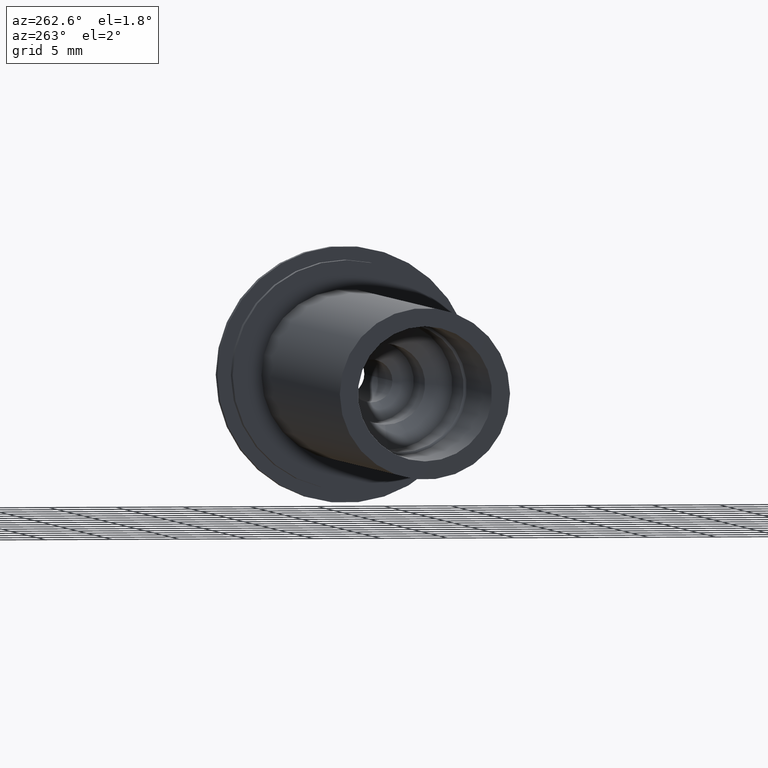
[diagram: clean part render]
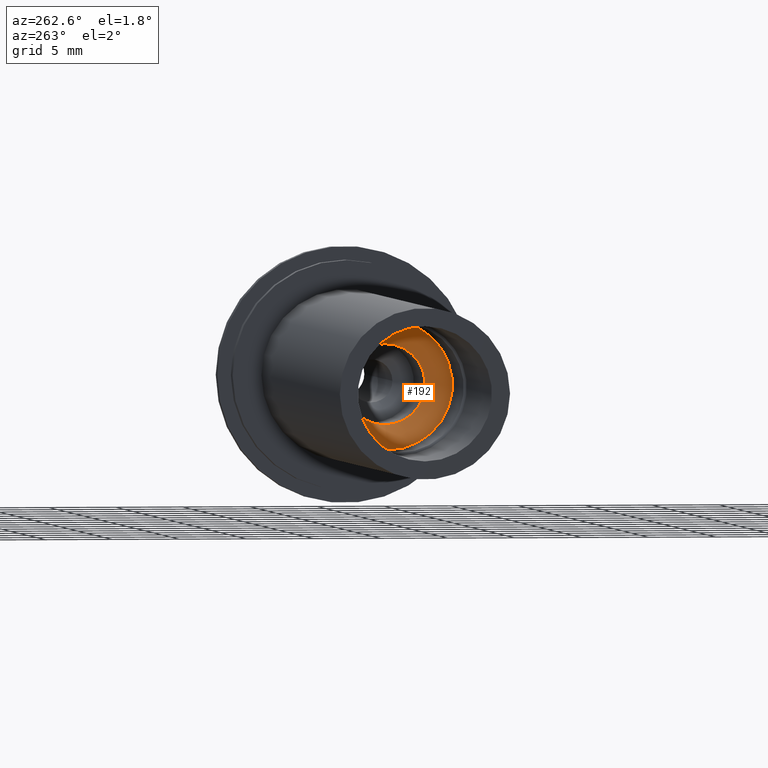
[diagram: same view with one face highlighted and labeled with its STEP entity id]
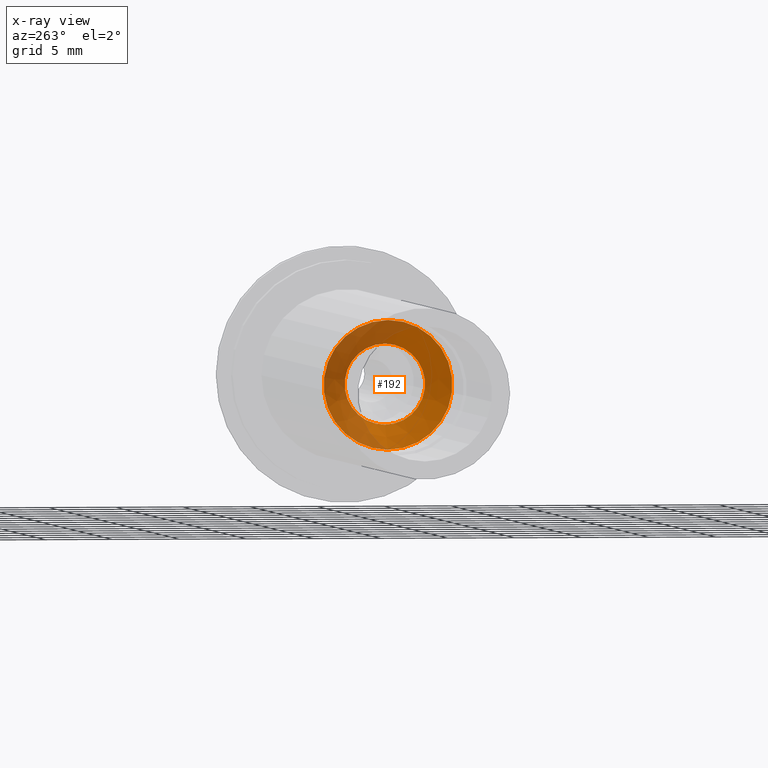
[diagram: x-ray of the same camera — body ghosted, the highlighted face saturated]
A machine part, auxiliary view. The second image highlights one B-rep face of the part: STEP entity #192.
The next image is the same camera in x-ray: the body ghosted, the highlighted face saturated — about 45% of this face is hidden behind the body in this view.
In plain terms, the highlighted conical surface has half-angle 45 deg.
Its self-contained STEP definition (entity closure, byte-faithful):
#32=FACE_OUTER_BOUND('',#46,.T.);
#46=EDGE_LOOP('',(#146,#147,#148,#149));
#64=LINE('',#342,#74);
#74=VECTOR('',#276,2.4);
#85=CIRCLE('',#232,3.);
#86=CIRCLE('',#234,4.8);
#100=VERTEX_POINT('',#336);
#101=VERTEX_POINT('',#340);
#116=EDGE_CURVE('',#100,#100,#85,.T.);
#118=EDGE_CURVE('',#101,#101,#86,.T.);
#119=EDGE_CURVE('',#101,#100,#64,.T.);
#146=ORIENTED_EDGE('',*,*,#118,.T.);
#147=ORIENTED_EDGE('',*,*,#119,.T.);
#148=ORIENTED_EDGE('',*,*,#116,.T.);
#149=ORIENTED_EDGE('',*,*,#119,.F.);
#188=CONICAL_SURFACE('',#233,2.4,0.785398163397448);
#192=ADVANCED_FACE('',(#32),#188,.F.);
#232=AXIS2_PLACEMENT_3D('',#337,#269,#270);
#233=AXIS2_PLACEMENT_3D('',#339,#272,#273);
#234=AXIS2_PLACEMENT_3D('',#341,#274,#275);
#269=DIRECTION('center_axis',(1.,0.,0.));
#270=DIRECTION('ref_axis',(0.,0.,1.));
#272=DIRECTION('center_axis',(-1.,0.,0.));
#273=DIRECTION('ref_axis',(0.,0.,1.));
#274=DIRECTION('center_axis',(-1.,0.,0.));
#275=DIRECTION('ref_axis',(0.,0.,1.));
#276=DIRECTION('',(0.707106781186548,8.65956056235493E-17,0.707106781186547));
#336=CARTESIAN_POINT('',(-24.,3.67394039744206E-16,-3.));
#337=CARTESIAN_POINT('Origin',(-24.,0.,0.));
#339=CARTESIAN_POINT('Origin',(-23.4,0.,0.));
#340=CARTESIAN_POINT('',(-25.8,-5.8783046359073E-16,-4.8));
#341=CARTESIAN_POINT('Origin',(-25.8,0.,0.));
#342=CARTESIAN_POINT('',(-23.4,-2.93915231795365E-16,-2.4));